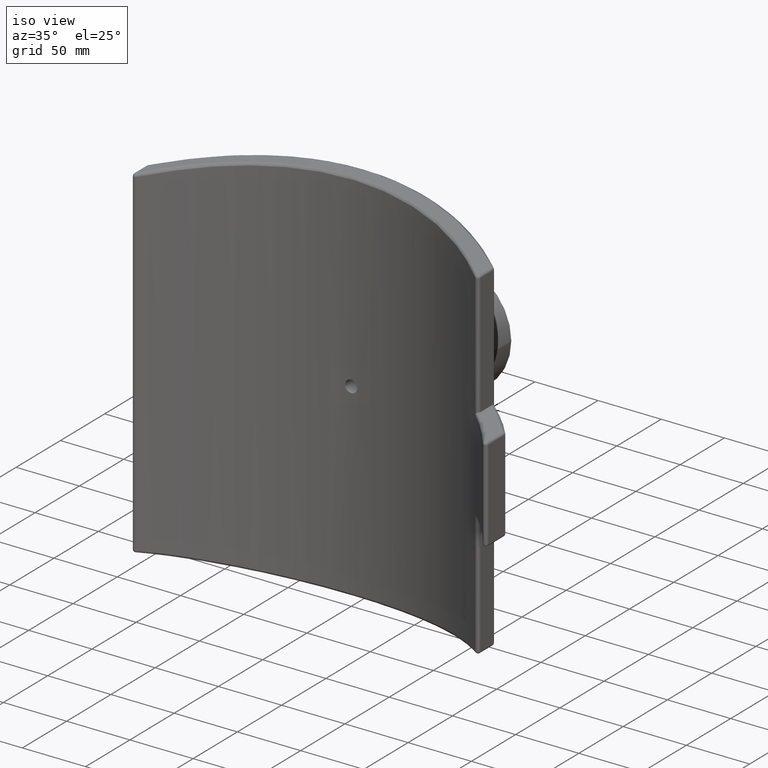
[diagram: clean part render]
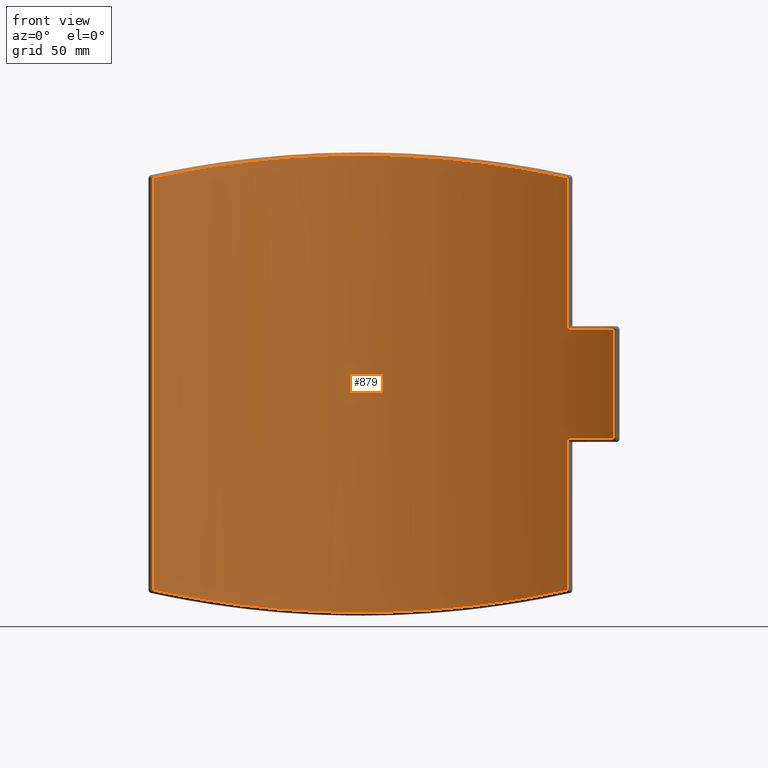
[diagram: tour spotlight — one face highlighted and labeled with its STEP entity id]
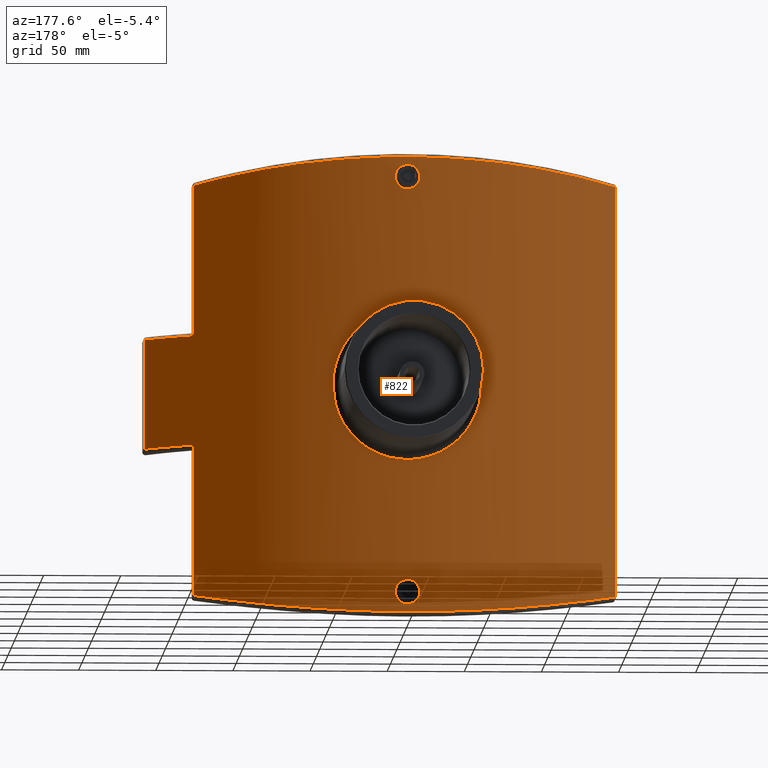
[diagram: tour spotlight — one face highlighted and labeled with its STEP entity id]
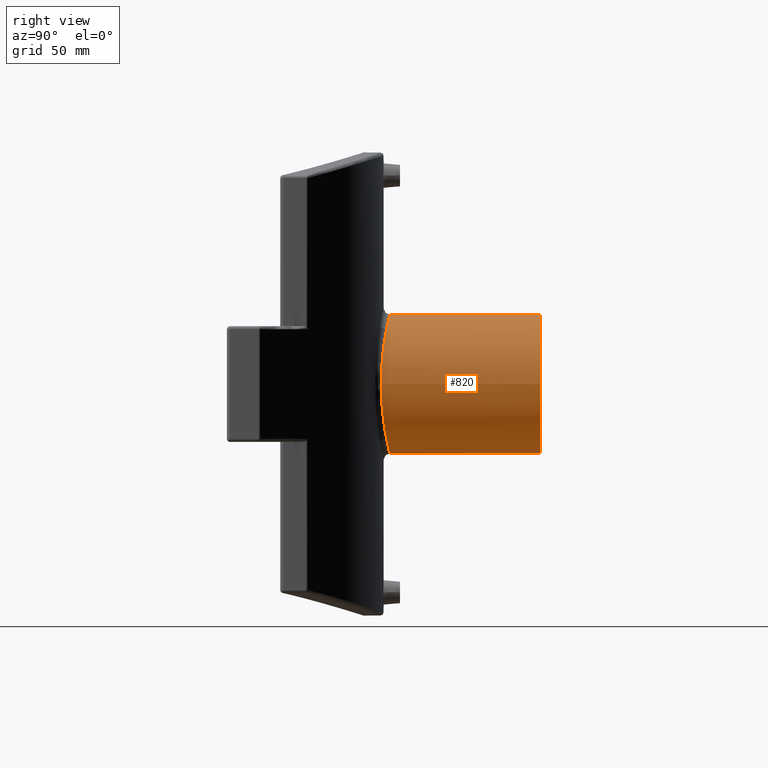
[diagram: tour spotlight — one face highlighted and labeled with its STEP entity id]
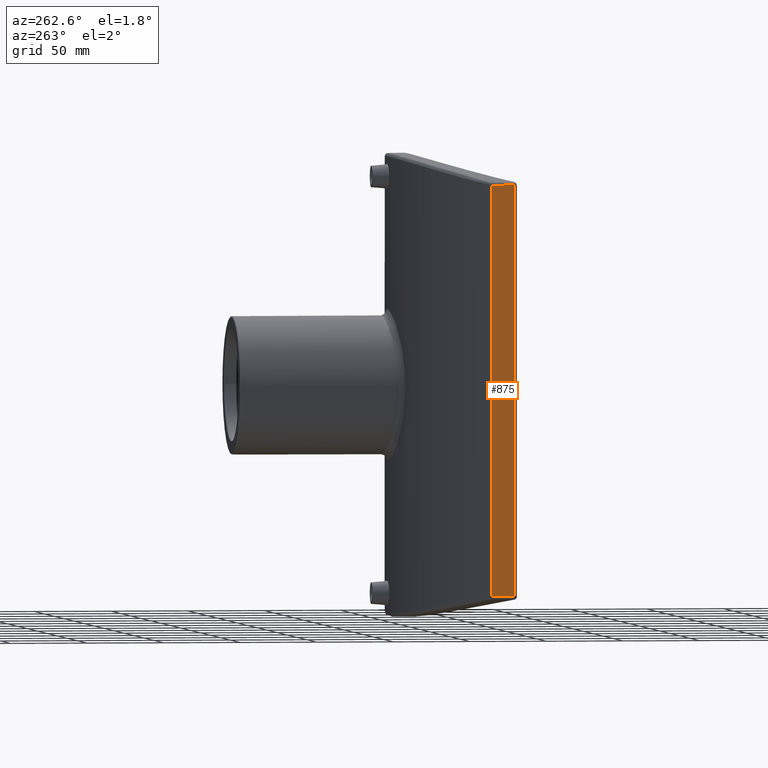
[diagram: tour spotlight — one face highlighted and labeled with its STEP entity id]
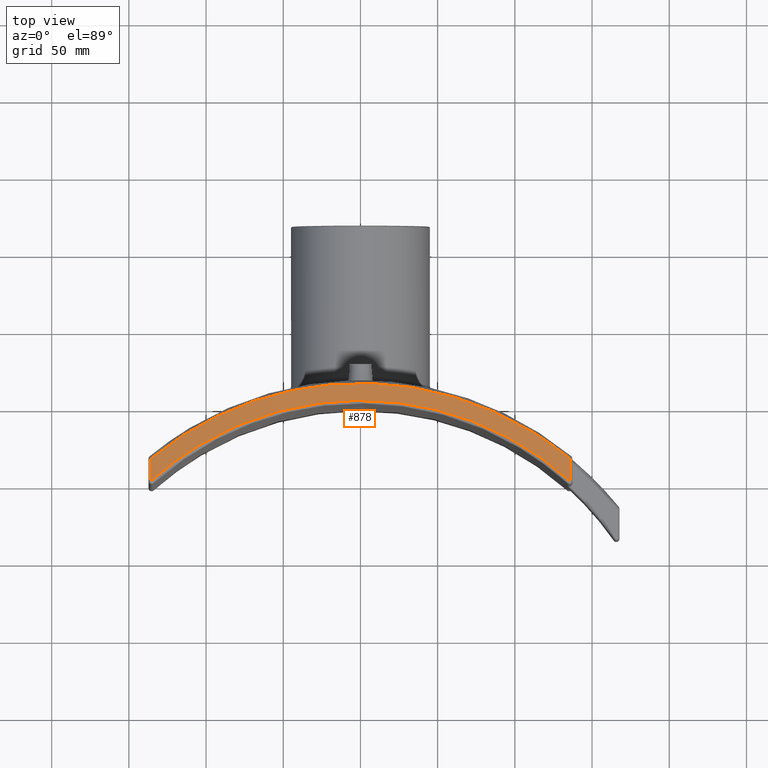
[diagram: tour spotlight — one face highlighted and labeled with its STEP entity id]
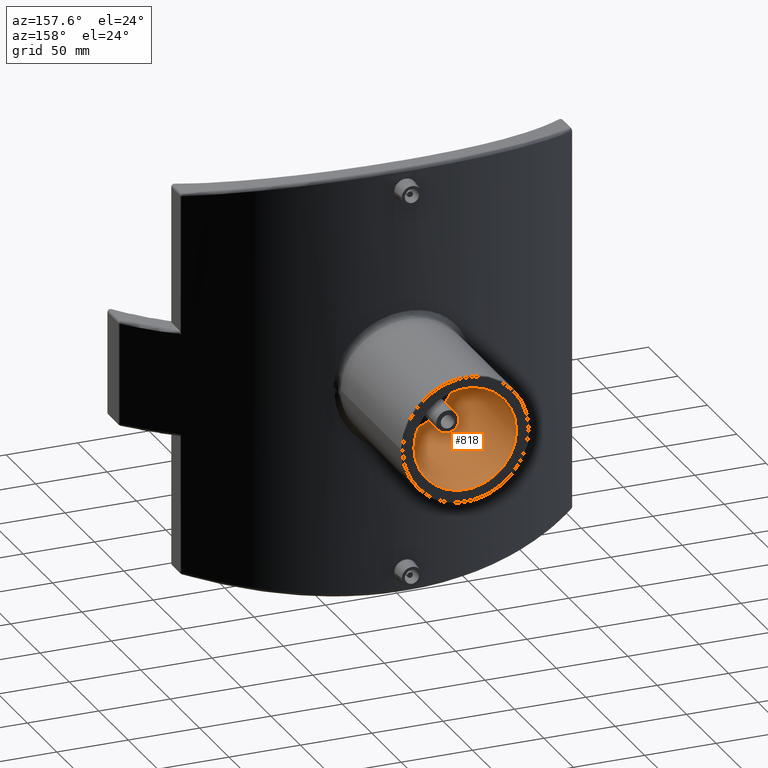
[diagram: tour spotlight — one face highlighted and labeled with its STEP entity id]
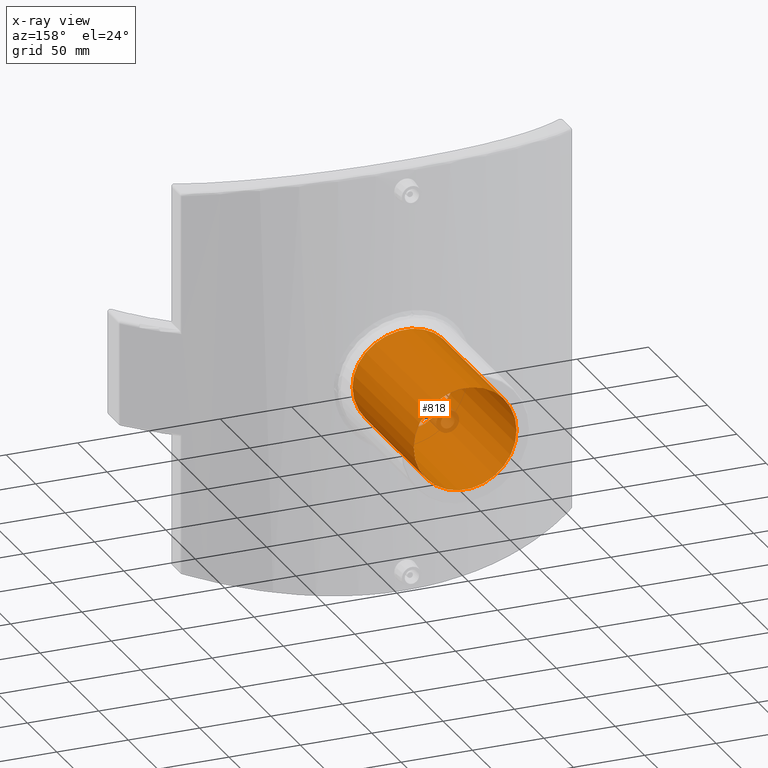
[diagram: x-ray of the same camera — body ghosted, this tour face saturated]
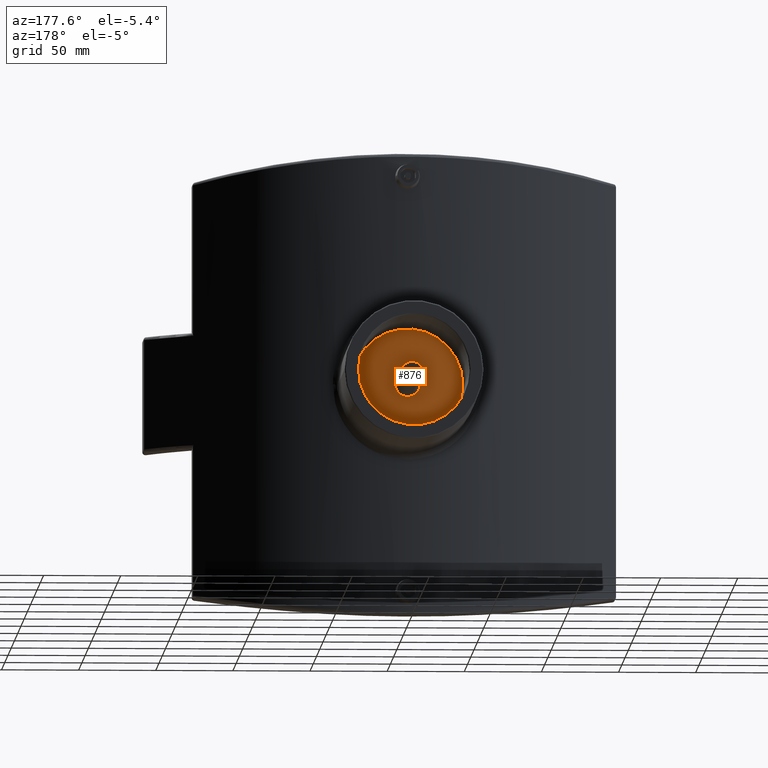
[diagram: tour spotlight — one face highlighted and labeled with its STEP entity id]
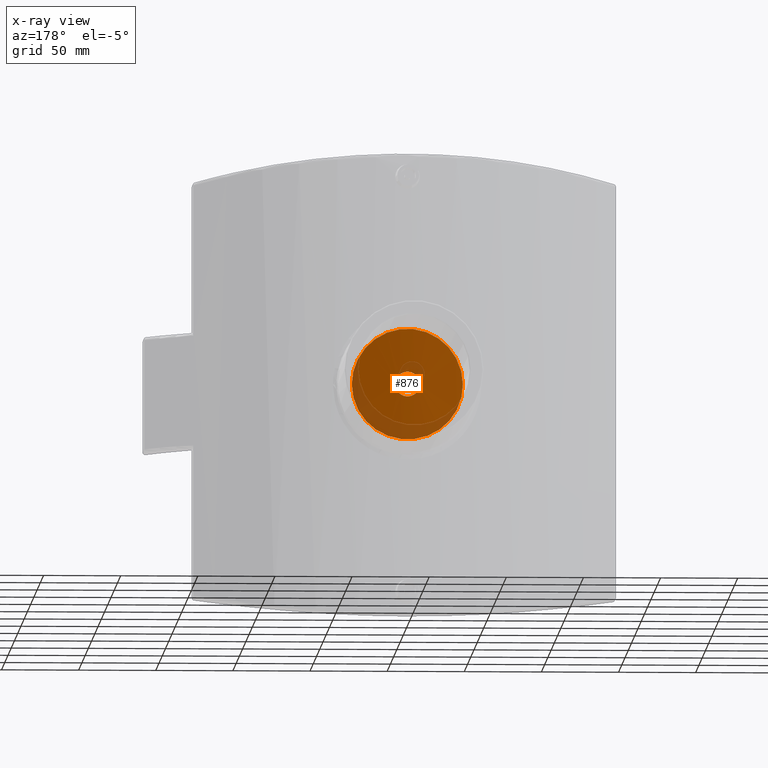
[diagram: x-ray of the same camera — body ghosted, this tour face saturated]
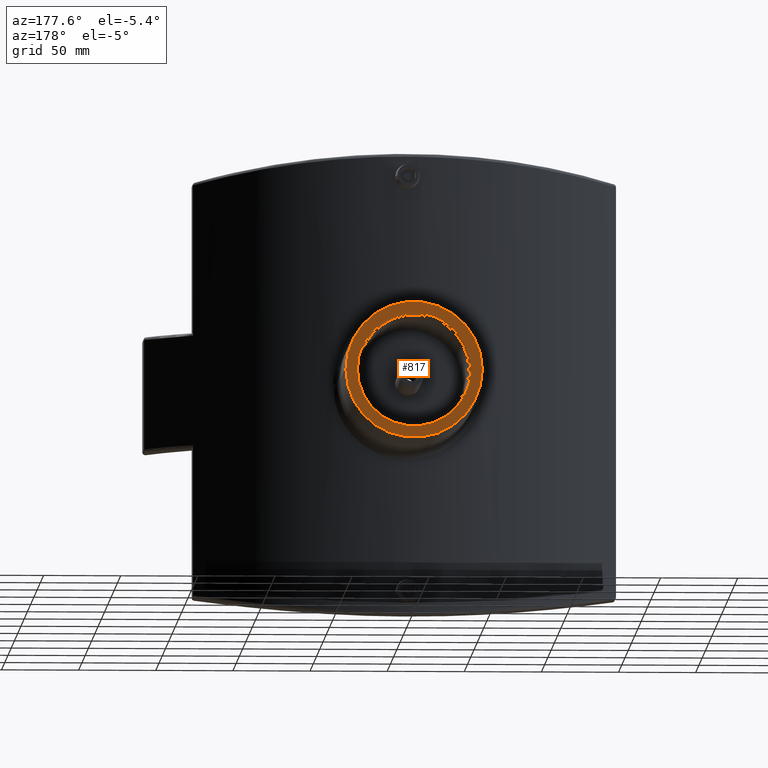
[diagram: tour spotlight — one face highlighted and labeled with its STEP entity id]
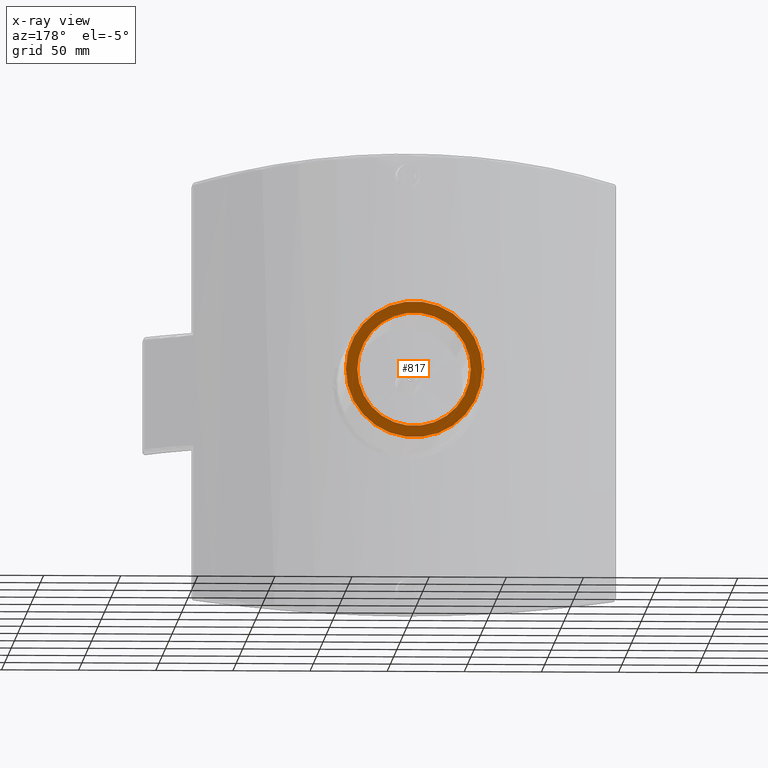
[diagram: x-ray of the same camera — body ghosted, this tour face saturated]
A machine part: a face-by-face anatomy tour. The part has 66 B-rep faces; the first image is the clean iso view, then the 8 largest visible faces are spotlighted one at a time (largest first), each with its STEP entity span.

Face 1 — front view, entity #879. In plain terms, the highlighted cylindrical surface (partial cylindrical patch) has radius 200 mm, axis along (0, 0, 1).
Definition (entity closure, byte-faithful):
#37=LINE('',#1950,#67);
#41=LINE('',#2045,#71);
#48=LINE('',#2082,#78);
#53=LINE('',#2205,#83);
#67=VECTOR('',#1194,71.);
#71=VECTOR('',#1210,97.8920048770969);
#78=VECTOR('',#1233,266.784009754194);
#83=VECTOR('',#1258,97.8920048770969);
#101=B_SPLINE_CURVE_WITH_KNOTS('',3,(#1638,#1639,#1640,#1641,#1642,#1643,
#1644,#1645,#1646,#1647,#1648,#1649,#1650,#1651,#1652,#1653,#1654,#1655,
#1656,#1657,#1658,#1659,#1660,#1661,#1662,#1663,#1664,#1665,#1666,#1667,
#1668,#1669,#1670,#1671),.UNSPECIFIED.,.T.,.F.,(4,2,2,2,2,2,2,2,2,2,2,2,
2,2,2,2,4),(0.,0.180817060233591,0.361634120467183,0.542451178676776,0.723268236886369,
0.904085295095962,1.08490235330556,1.26571941353915,1.44653647377274,1.62735353400633,
1.80817059423992,1.98898765244951,2.16980471065911,2.3506217688687,2.53143882707829,
2.71225588731188,2.89307294754548),.UNSPECIFIED.);
#106=B_SPLINE_CURVE_WITH_KNOTS('',3,(#2021,#2022,#2023,#2024,#2025,#2026,
#2027,#2028,#2029,#2030),.UNSPECIFIED.,.F.,.F.,(4,1,1,1,1,1,1,4),(-35.4445529855151,
-31.1851910725527,-26.9258291595903,-22.6664672466279,-18.4071053336655,
-14.1477434207031,-9.88838150774072,-5.62901959477832),.UNSPECIFIED.);
#112=B_SPLINE_CURVE_WITH_KNOTS('',3,(#2175,#2176,#2177,#2178,#2179,#2180,
#2181,#2182,#2183,#2184),.UNSPECIFIED.,.F.,.F.,(4,1,1,1,1,1,1,4),(-33.5496110408139,
-29.2902491278514,-25.030887214889,-20.7715253019266,-16.5121633889642,
-12.2528014760018,-7.99343956303935,-3.73407765007693),.UNSPECIFIED.);
#141=CYLINDRICAL_SURFACE('',#1005,200.);
#178=FACE_BOUND('',#331,.T.);
#242=FACE_OUTER_BOUND('',#330,.T.);
#330=EDGE_LOOP('',(#791,#792,#793,#794,#795,#796,#797,#798));
#331=EDGE_LOOP('',(#799));
#390=CIRCLE('',#980,200.);
#393=CIRCLE('',#988,200.);
#416=VERTEX_POINT('',#1637);
#433=VERTEX_POINT('',#1763);
#438=VERTEX_POINT('',#1839);
#447=VERTEX_POINT('',#1865);
#448=VERTEX_POINT('',#1869);
#453=VERTEX_POINT('',#1942);
#458=VERTEX_POINT('',#1958);
#460=VERTEX_POINT('',#2044);
#464=VERTEX_POINT('',#2086);
#488=EDGE_CURVE('',#416,#416,#101,.T.);
#540=EDGE_CURVE('',#453,#447,#37,.T.);
#546=EDGE_CURVE('',#448,#458,#106,.T.);
#549=EDGE_CURVE('',#458,#460,#41,.T.);
#552=EDGE_CURVE('',#460,#453,#390,.T.);
#561=EDGE_CURVE('',#438,#448,#48,.T.);
#563=EDGE_CURVE('',#447,#464,#393,.T.);
#571=EDGE_CURVE('',#433,#438,#112,.T.);
#575=EDGE_CURVE('',#464,#433,#53,.T.);
#791=ORIENTED_EDGE('',*,*,#546,.F.);
#792=ORIENTED_EDGE('',*,*,#561,.F.);
#793=ORIENTED_EDGE('',*,*,#571,.F.);
#794=ORIENTED_EDGE('',*,*,#575,.F.);
#795=ORIENTED_EDGE('',*,*,#563,.F.);
#796=ORIENTED_EDGE('',*,*,#540,.F.);
#797=ORIENTED_EDGE('',*,*,#552,.F.);
#798=ORIENTED_EDGE('',*,*,#549,.F.);
#799=ORIENTED_EDGE('',*,*,#488,.T.);
#879=ADVANCED_FACE('',(#242,#178),#141,.F.);
#980=AXIS2_PLACEMENT_3D('',#2061,#1215,#1216);
#988=AXIS2_PLACEMENT_3D('',#2087,#1238,#1239);
#1005=AXIS2_PLACEMENT_3D('',#2221,#1282,#1283);
#1194=DIRECTION('',(0.,0.,-1.));
#1210=DIRECTION('',(0.,0.,-1.));
#1215=DIRECTION('center_axis',(0.,0.,-1.));
#1216=DIRECTION('ref_axis',(0.767961388285212,0.64049614058404,0.));
#1233=DIRECTION('',(0.,0.,1.));
#1238=DIRECTION('center_axis',(0.,0.,1.));
#1239=DIRECTION('ref_axis',(0.767961388285212,0.64049614058404,0.));
#1258=DIRECTION('',(0.,0.,-1.));
#1282=DIRECTION('center_axis',(0.,0.,1.));
#1283=DIRECTION('ref_axis',(-1.,0.,0.));
#1637=CARTESIAN_POINT('',(4.8,199.94239170321,-1.38777878078145E-16));
#1638=CARTESIAN_POINT('Ctrl Pts',(4.8,199.94239170321,-1.38777878078145E-16));
#1639=CARTESIAN_POINT('Ctrl Pts',(4.8,199.94239170321,-0.602723534111971));
#1640=CARTESIAN_POINT('Ctrl Pts',(4.67954083216235,199.945397343844,-1.24560563054448));
#1641=CARTESIAN_POINT('Ctrl Pts',(4.1896760719842,199.956261806887,-2.42821955680468));
#1642=CARTESIAN_POINT('Ctrl Pts',(3.8202717566496,199.963964722883,-2.96795334274125));
#1643=CARTESIAN_POINT('Ctrl Pts',(2.96795334751152,199.978431129239,-3.82027175187934));
#1644=CARTESIAN_POINT('Ctrl Pts',(2.42821955905803,199.986133077268,-4.18967607003134));
#1645=CARTESIAN_POINT('Ctrl Pts',(1.2456056265593,199.996995327551,-4.67954083483257));
#1646=CARTESIAN_POINT('Ctrl Pts',(0.60272352736531,200.,-4.8));
#1647=CARTESIAN_POINT('Ctrl Pts',(-0.602723527365311,200.,-4.8));
#1648=CARTESIAN_POINT('Ctrl Pts',(-1.2456056265593,199.996995327551,-4.67954083483257));
#1649=CARTESIAN_POINT('Ctrl Pts',(-2.42821955905804,199.986133077268,-4.18967607003134));
#1650=CARTESIAN_POINT('Ctrl Pts',(-2.96795334751152,199.978431129239,-3.82027175187934));
#1651=CARTESIAN_POINT('Ctrl Pts',(-3.8202717566496,199.963964722883,-2.96795334274125));
#1652=CARTESIAN_POINT('Ctrl Pts',(-4.1896760719842,199.956261806887,-2.42821955680468));
#1653=CARTESIAN_POINT('Ctrl Pts',(-4.67954083216235,199.945397343844,-1.24560563054448));
#1654=CARTESIAN_POINT('Ctrl Pts',(-4.8,199.94239170321,-0.602723534111971));
#1655=CARTESIAN_POINT('Ctrl Pts',(-4.8,199.94239170321,0.602723534111971));
#1656=CARTESIAN_POINT('Ctrl Pts',(-4.67954083216235,199.945397343844,1.24560563054448));
#1657=CARTESIAN_POINT('Ctrl Pts',(-4.1896760719842,199.956261806887,2.42821955680468));
#1658=CARTESIAN_POINT('Ctrl Pts',(-3.8202717566496,199.963964722883,2.96795334274125));
#1659=CARTESIAN_POINT('Ctrl Pts',(-2.96795334751152,199.978431129239,3.82027175187934));
#1660=CARTESIAN_POINT('Ctrl Pts',(-2.42821955905804,199.986133077268,4.18967607003134));
#1661=CARTESIAN_POINT('Ctrl Pts',(-1.2456056265593,199.996995327551,4.67954083483257));
#1662=CARTESIAN_POINT('Ctrl Pts',(-0.602723527365311,200.,4.8));
#1663=CARTESIAN_POINT('Ctrl Pts',(0.602723527365309,200.,4.8));
#1664=CARTESIAN_POINT('Ctrl Pts',(1.2456056265593,199.996995327551,4.67954083483257));
#1665=CARTESIAN_POINT('Ctrl Pts',(2.42821955905803,199.986133077268,4.18967607003134));
#1666=CARTESIAN_POINT('Ctrl Pts',(2.96795334751152,199.978431129239,3.82027175187934));
#1667=CARTESIAN_POINT('Ctrl Pts',(3.8202717566496,199.963964722883,2.96795334274125));
#1668=CARTESIAN_POINT('Ctrl Pts',(4.1896760719842,199.956261806887,2.42821955680468));
#1669=CARTESIAN_POINT('Ctrl Pts',(4.67954083216235,199.945397343844,1.24560563054448));
#1670=CARTESIAN_POINT('Ctrl Pts',(4.8,199.94239170321,0.602723534111971));
#1671=CARTESIAN_POINT('Ctrl Pts',(4.8,199.94239170321,-2.77555756156289E-16));
#1763=CARTESIAN_POINT('',(133.910891089109,148.552594214039,-133.392004877097));
#1839=CARTESIAN_POINT('',(-133.910891089109,148.552594214039,-133.392004877097));
#1865=CARTESIAN_POINT('',(164.108910891089,114.316513969507,-35.5));
#1869=CARTESIAN_POINT('',(-133.910891089109,148.552594214039,133.392004877097));
#1942=CARTESIAN_POINT('',(164.108910891089,114.316513969507,35.5));
#1950=CARTESIAN_POINT('',(164.108910891089,114.316513969507,0.));
#1958=CARTESIAN_POINT('',(133.910891089109,148.552594214039,133.392004877097));
#2021=CARTESIAN_POINT('Ctrl Pts',(-133.910891089118,148.552594214031,133.392004877095));
#2022=CARTESIAN_POINT('Ctrl Pts',(-123.604752868002,157.842934515249,135.667085320113));
#2023=CARTESIAN_POINT('Ctrl Pts',(-101.036218724514,174.289703117976,140.094344602753));
#2024=CARTESIAN_POINT('Ctrl Pts',(-62.6150184562832,191.499867021492,145.276154651404));
#2025=CARTESIAN_POINT('Ctrl Pts',(-21.2161006319526,200.368188973299,148.117108541962));
#2026=CARTESIAN_POINT('Ctrl Pts',(21.2163930641213,200.369713574989,148.118476920115));
#2027=CARTESIAN_POINT('Ctrl Pts',(62.6146544596855,191.49859090136,145.275028312001));
#2028=CARTESIAN_POINT('Ctrl Pts',(101.035977724692,174.29068165987,140.095074797805));
#2029=CARTESIAN_POINT('Ctrl Pts',(123.604576926162,157.843093115834,135.667124159281));
#2030=CARTESIAN_POINT('Ctrl Pts',(133.910891089109,148.552594214039,133.392004877097));
#2044=CARTESIAN_POINT('',(133.910891089109,148.552594214039,35.5));
#2045=CARTESIAN_POINT('',(133.910891089109,148.552594214039,0.));
#2061=CARTESIAN_POINT('Origin',(0.,0.,35.5));
#2082=CARTESIAN_POINT('',(-133.910891089109,148.552594214039,0.));
#2086=CARTESIAN_POINT('',(133.910891089109,148.552594214039,-35.5));
#2087=CARTESIAN_POINT('Origin',(0.,0.,-35.5));
#2175=CARTESIAN_POINT('Ctrl Pts',(133.910891089119,148.55259421403,-133.392004877095));
#2176=CARTESIAN_POINT('Ctrl Pts',(123.604576926173,157.843093115826,-135.667124159279));
#2177=CARTESIAN_POINT('Ctrl Pts',(101.035539059808,174.290130943579,-140.094467062208));
#2178=CARTESIAN_POINT('Ctrl Pts',(62.6152349368051,191.499645031378,-145.276092033215));
#2179=CARTESIAN_POINT('Ctrl Pts',(21.2159953369663,200.368340063816,-148.117151951753));
#2180=CARTESIAN_POINT('Ctrl Pts',(-21.2164980577146,200.36954271126,-148.118427718073));
#2181=CARTESIAN_POINT('Ctrl Pts',(-62.614475081052,191.498774741084,-145.275080229167));
#2182=CARTESIAN_POINT('Ctrl Pts',(-101.036607213343,174.290267290732,-140.09495688298));
#2183=CARTESIAN_POINT('Ctrl Pts',(-123.604752867993,157.842934515257,-135.667085320115));
#2184=CARTESIAN_POINT('Ctrl Pts',(-133.910891089109,148.552594214039,-133.392004877097));
#2205=CARTESIAN_POINT('',(133.910891089109,148.552594214039,0.));
#2221=CARTESIAN_POINT('Origin',(0.,0.,0.));

Face 2 — auxiliary view, entity #822. In plain terms, the highlighted cylindrical surface (partial cylindrical patch) has radius 215 mm, axis along (0, 0, 1).
Definition (entity closure, byte-faithful):
#29=LINE('',#1529,#59);
#30=LINE('',#1533,#60);
#31=LINE('',#1546,#61);
#32=LINE('',#1559,#62);
#59=VECTOR('',#1032,71.);
#60=VECTOR('',#1035,97.892004877097);
#61=VECTOR('',#1036,266.784009754194);
#62=VECTOR('',#1037,97.892004877097);
#96=B_SPLINE_CURVE_WITH_KNOTS('',3,(#1504,#1505,#1506,#1507,#1508,#1509,
#1510,#1511,#1512,#1513,#1514,#1515,#1516,#1517,#1518,#1519,#1520,#1521,
#1522,#1523,#1524,#1525),.UNSPECIFIED.,.T.,.F.,(4,1,1,1,1,1,1,1,1,1,1,1,
1,1,1,1,1,1,1,4),(-27.208185514338,-25.2647436918853,-23.3213018694325,
-22.0256739877974,-20.7300461061623,-19.4344182245271,-18.138790342892,
-16.8431624612568,-15.5475345796217,-14.2519066979866,-12.9562788163514,
-11.6606509347163,-10.3650230530811,-9.06939517144599,-7.77376728981085,
-6.80204637858449,-5.83032546735814,-3.88688364490542,-1.94344182245271,
0.),.UNSPECIFIED.);
#97=B_SPLINE_CURVE_WITH_KNOTS('',3,(#1535,#1536,#1537,#1538,#1539,#1540,
#1541,#1542,#1543,#1544),.UNSPECIFIED.,.F.,.F.,(4,1,1,1,1,1,1,4),(-34.0611602883262,
-29.8484664557769,-25.6357726232275,-21.4230787906782,-17.2103849581289,
-12.9976911255795,-8.7849972930302,-4.57230346048087),.UNSPECIFIED.);
#98=B_SPLINE_CURVE_WITH_KNOTS('',3,(#1548,#1549,#1550,#1551,#1552,#1553,
#1554,#1555,#1556,#1557),.UNSPECIFIED.,.F.,.F.,(4,1,1,1,1,1,1,4),(-30.7360959862472,
-26.523402153698,-22.3107083211488,-18.0980144885995,-13.8853206560503,
-9.67262682350105,-5.45993299095181,-1.24723915840258),.UNSPECIFIED.);
#99=B_SPLINE_CURVE_WITH_KNOTS('',3,(#1562,#1563,#1564,#1565,#1566,#1567,
#1568,#1569,#1570,#1571,#1572,#1573,#1574,#1575,#1576,#1577,#1578,#1579,
#1580,#1581,#1582,#1583,#1584,#1585,#1586,#1587,#1588,#1589,#1590,#1591,
#1592,#1593,#1594,#1595),.UNSPECIFIED.,.T.,.F.,(4,2,2,2,2,2,2,2,2,2,2,2,
2,2,2,2,4),(0.,0.298939862461717,0.597879724923433,0.896709336524648,1.19553894812586,
1.49436855972708,1.79319817132829,2.09213803379001,2.39107789625172,2.69001775871344,
2.98895762117516,3.28778723277637,3.58661684437759,3.8854464559788,4.18427606758001,
4.48321593004173,4.78215579250345),.UNSPECIFIED.);
#100=B_SPLINE_CURVE_WITH_KNOTS('',3,(#1597,#1598,#1599,#1600,#1601,#1602,
#1603,#1604,#1605,#1606,#1607,#1608,#1609,#1610,#1611,#1612,#1613,#1614,
#1615,#1616,#1617,#1618,#1619,#1620,#1621,#1622,#1623,#1624,#1625,#1626,
#1627,#1628,#1629,#1630),.UNSPECIFIED.,.T.,.F.,(4,2,2,2,2,2,2,2,2,2,2,2,
2,2,2,2,4),(0.,0.298939862461717,0.597879724923433,0.896709336524648,1.19553894812586,
1.49436855972708,1.79319817132829,2.09213803379001,2.39107789625172,2.69001775871344,
2.98895762117516,3.28778723277637,3.58661684437759,3.8854464559788,4.18427606758001,
4.48321593004173,4.78215579250345),.UNSPECIFIED.);
#117=CYLINDRICAL_SURFACE('',#894,215.);
#161=FACE_BOUND('',#257,.T.);
#162=FACE_BOUND('',#258,.T.);
#163=FACE_BOUND('',#259,.T.);
#185=FACE_OUTER_BOUND('',#256,.T.);
#256=EDGE_LOOP('',(#596,#597,#598,#599,#600,#601,#602,#603));
#257=EDGE_LOOP('',(#604));
#258=EDGE_LOOP('',(#605));
#259=EDGE_LOOP('',(#606));
#339=CIRCLE('',#895,215.);
#340=CIRCLE('',#896,215.);
#403=VERTEX_POINT('',#1502);
#404=VERTEX_POINT('',#1527);
#405=VERTEX_POINT('',#1528);
#406=VERTEX_POINT('',#1530);
#407=VERTEX_POINT('',#1532);
#408=VERTEX_POINT('',#1534);
#409=VERTEX_POINT('',#1545);
#410=VERTEX_POINT('',#1547);
#411=VERTEX_POINT('',#1558);
#412=VERTEX_POINT('',#1561);
#413=VERTEX_POINT('',#1596);
#475=EDGE_CURVE('',#403,#403,#96,.T.);
#476=EDGE_CURVE('',#404,#405,#29,.T.);
#477=EDGE_CURVE('',#406,#404,#339,.T.);
#478=EDGE_CURVE('',#407,#406,#30,.T.);
#479=EDGE_CURVE('',#408,#407,#97,.T.);
#480=EDGE_CURVE('',#409,#408,#31,.T.);
#481=EDGE_CURVE('',#410,#409,#98,.T.);
#482=EDGE_CURVE('',#411,#410,#32,.T.);
#483=EDGE_CURVE('',#405,#411,#340,.T.);
#484=EDGE_CURVE('',#412,#412,#99,.T.);
#485=EDGE_CURVE('',#413,#413,#100,.T.);
#596=ORIENTED_EDGE('',*,*,#476,.F.);
#597=ORIENTED_EDGE('',*,*,#477,.F.);
#598=ORIENTED_EDGE('',*,*,#478,.F.);
#599=ORIENTED_EDGE('',*,*,#479,.F.);
#600=ORIENTED_EDGE('',*,*,#480,.F.);
#601=ORIENTED_EDGE('',*,*,#481,.F.);
#602=ORIENTED_EDGE('',*,*,#482,.F.);
#603=ORIENTED_EDGE('',*,*,#483,.F.);
#604=ORIENTED_EDGE('',*,*,#484,.T.);
#605=ORIENTED_EDGE('',*,*,#485,.T.);
#606=ORIENTED_EDGE('',*,*,#475,.F.);
#822=ADVANCED_FACE('',(#185,#161,#162,#163),#117,.T.);
#894=AXIS2_PLACEMENT_3D('',#1526,#1030,#1031);
#895=AXIS2_PLACEMENT_3D('',#1531,#1033,#1034);
#896=AXIS2_PLACEMENT_3D('',#1560,#1038,#1039);
#1030=DIRECTION('center_axis',(0.,0.,1.));
#1031=DIRECTION('ref_axis',(1.,0.,0.));
#1032=DIRECTION('',(0.,0.,1.));
#1033=DIRECTION('center_axis',(0.,0.,-1.));
#1034=DIRECTION('ref_axis',(0.712959302615589,0.701205414136181,0.));
#1035=DIRECTION('',(0.,0.,1.));
#1036=DIRECTION('',(0.,0.,-1.));
#1037=DIRECTION('',(0.,0.,1.));
#1038=DIRECTION('center_axis',(0.,0.,1.));
#1039=DIRECTION('ref_axis',(0.712959302615589,0.701205414136181,0.));
#1502=CARTESIAN_POINT('',(48.1050228310502,209.549294387798,0.));
#1504=CARTESIAN_POINT('Ctrl Pts',(48.1076832206702,209.54700185251,0.000309991298883538));
#1505=CARTESIAN_POINT('Ctrl Pts',(48.1080582916608,209.547305654999,-7.34923003627727));
#1506=CARTESIAN_POINT('Ctrl Pts',(44.7926485308438,210.349459325852,-22.0507998265062));
#1507=CARTESIAN_POINT('Ctrl Pts',(32.5564148958901,212.691810228919,-37.6339744851042));
#1508=CARTESIAN_POINT('Ctrl Pts',(17.8850145549478,214.398630072154,-46.2797103351702));
#1509=CARTESIAN_POINT('Ctrl Pts',(3.66473044400616,215.135698381792,-49.6036465677285));
#1510=CARTESIAN_POINT('Ctrl Pts',(-10.9041843706142,214.881870066844,-48.4846925208418));
#1511=CARTESIAN_POINT('Ctrl Pts',(-24.4508843808625,213.730525600818,-43.0485617677192));
#1512=CARTESIAN_POINT('Ctrl Pts',(-35.7855846513443,212.079165374285,-33.8298603464869));
#1513=CARTESIAN_POINT('Ctrl Pts',(-43.971483539321,210.486339471388,-21.623812473666));
#1514=CARTESIAN_POINT('Ctrl Pts',(-48.2834732400292,209.50968412987,-7.44157921793164));
#1515=CARTESIAN_POINT('Ctrl Pts',(-48.2845303949243,209.508630487899,7.44231091189044));
#1516=CARTESIAN_POINT('Ctrl Pts',(-43.9707475021902,210.487000790694,21.6235833870058));
#1517=CARTESIAN_POINT('Ctrl Pts',(-35.7850878479866,212.078976005448,33.8300756663386));
#1518=CARTESIAN_POINT('Ctrl Pts',(-24.451293968779,213.730586175397,43.0486763387349));
#1519=CARTESIAN_POINT('Ctrl Pts',(-12.0320453808588,214.786389503019,48.0322661543092));
#1520=CARTESIAN_POINT('Ctrl Pts',(-0.00119318052330378,215.090766348137,
49.4136902337802));
#1521=CARTESIAN_POINT('Ctrl Pts',(14.4441062966396,214.728113888428,47.7595167982535));
#1522=CARTESIAN_POINT('Ctrl Pts',(31.0335562466624,212.989695986086,39.5894533759579));
#1523=CARTESIAN_POINT('Ctrl Pts',(44.7903981049006,210.347636510921,22.0464403389507));
#1524=CARTESIAN_POINT('Ctrl Pts',(48.1073081496797,209.546698050022,7.34985001887504));
#1525=CARTESIAN_POINT('Ctrl Pts',(48.1076832206702,209.54700185251,0.000309991298890729));
#1526=CARTESIAN_POINT('Origin',(0.,0.,0.));
#1527=CARTESIAN_POINT('',(167.306338028169,135.031808310502,-35.5));
#1528=CARTESIAN_POINT('',(167.306338028169,135.031808310502,35.5));
#1529=CARTESIAN_POINT('',(167.306338028169,135.031808310502,0.));
#1530=CARTESIAN_POINT('',(136.519953051643,166.094257633361,-35.5));
#1531=CARTESIAN_POINT('Origin',(0.,0.,-35.5));
#1532=CARTESIAN_POINT('',(136.519953051643,166.09425763336,-133.392004877097));
#1533=CARTESIAN_POINT('',(136.519953051643,166.09425763336,0.));
#1534=CARTESIAN_POINT('',(-136.519953051643,166.09425763336,-133.392004877097));
#1535=CARTESIAN_POINT('Ctrl Pts',(-136.519953051643,166.09425763336,-133.392004877097));
#1536=CARTESIAN_POINT('Ctrl Pts',(-125.723502697251,174.968320569116,-135.729773666671));
#1537=CARTESIAN_POINT('Ctrl Pts',(-102.362985684374,190.63350263303,-140.2024056175));
#1538=CARTESIAN_POINT('Ctrl Pts',(-63.2085418360928,206.958738335174,-145.332973837477));
#1539=CARTESIAN_POINT('Ctrl Pts',(-21.3774493653246,215.348534643414,-148.114874392193));
#1540=CARTESIAN_POINT('Ctrl Pts',(21.3779264621199,215.349641375073,-148.115915715155));
#1541=CARTESIAN_POINT('Ctrl Pts',(63.2085369696898,206.957927193873,-145.332261953252));
#1542=CARTESIAN_POINT('Ctrl Pts',(102.36306947524,190.633803253483,-140.202709754539));
#1543=CARTESIAN_POINT('Ctrl Pts',(125.723153322602,174.968607735038,-135.729849317197));
#1544=CARTESIAN_POINT('Ctrl Pts',(136.519953051643,166.09425763336,-133.392004877097));
#1545=CARTESIAN_POINT('',(-136.519953051643,166.094257633361,133.392004877097));
#1546=CARTESIAN_POINT('',(-136.519953051643,166.094257633361,0.));
#1547=CARTESIAN_POINT('',(136.519953051643,166.094257633361,133.392004877097));
#1548=CARTESIAN_POINT('Ctrl Pts',(136.519953051643,166.094257633361,133.392004877097));
#1549=CARTESIAN_POINT('Ctrl Pts',(125.723153322602,174.968607735038,135.729849317197));
#1550=CARTESIAN_POINT('Ctrl Pts',(102.362954510343,190.633498880703,140.202408929763));
#1551=CARTESIAN_POINT('Ctrl Pts',(63.2088293749993,206.958599912462,145.332928480881));
#1552=CARTESIAN_POINT('Ctrl Pts',(21.3776392347904,215.348569376209,148.11488559005));
#1553=CARTESIAN_POINT('Ctrl Pts',(-21.3777395679149,215.349596485162,148.11590116896));
#1554=CARTESIAN_POINT('Ctrl Pts',(-63.2082628580006,206.958055565316,145.332304108498));
#1555=CARTESIAN_POINT('Ctrl Pts',(-102.363094452045,190.63381078274,140.202707645887));
#1556=CARTESIAN_POINT('Ctrl Pts',(-125.723502697253,174.968320569114,135.72977366667));
#1557=CARTESIAN_POINT('Ctrl Pts',(-136.519953051643,166.09425763336,133.392004877097));
#1558=CARTESIAN_POINT('',(136.519953051643,166.09425763336,35.5));
#1559=CARTESIAN_POINT('',(136.519953051643,166.09425763336,0.));
#1560=CARTESIAN_POINT('Origin',(0.,0.,35.5));
#1561=CARTESIAN_POINT('',(7.94021187234381,214.853329123433,-135.));
#1562=CARTESIAN_POINT('Ctrl Pts',(-7.94021187234381,214.853329123433,-135.));
#1563=CARTESIAN_POINT('Ctrl Pts',(-7.94021187234381,214.853329123433,-135.996466208206));
#1564=CARTESIAN_POINT('Ctrl Pts',(-7.74052143677593,214.860999612224,-137.05910120673));
#1565=CARTESIAN_POINT('Ctrl Pts',(-6.92901799045989,214.888700344615,-139.013203535085));
#1566=CARTESIAN_POINT('Ctrl Pts',(-6.31721954357068,214.908330851865,-139.904682559071));
#1567=CARTESIAN_POINT('Ctrl Pts',(-4.90667416952584,214.945160712395,-141.311565725442));
#1568=CARTESIAN_POINT('Ctrl Pts',(-4.01400272521873,214.964750037002,-141.92091035169));
#1569=CARTESIAN_POINT('Ctrl Pts',(-2.05871690764931,214.992366517964,-142.728815334707));
#1570=CARTESIAN_POINT('Ctrl Pts',(-0.996098705337381,215.,-142.927379833375));
#1571=CARTESIAN_POINT('Ctrl Pts',(0.996098705337382,215.,-142.927379833375));
#1572=CARTESIAN_POINT('Ctrl Pts',(2.0587169076493,214.992366517964,-142.728815334707));
#1573=CARTESIAN_POINT('Ctrl Pts',(4.01400272521873,214.964750037002,-141.92091035169));
#1574=CARTESIAN_POINT('Ctrl Pts',(4.90667416952584,214.945160712395,-141.311565725442));
#1575=CARTESIAN_POINT('Ctrl Pts',(6.31721954357068,214.908330851865,-139.904682559071));
#1576=CARTESIAN_POINT('Ctrl Pts',(6.92901799045987,214.888700344615,-139.013203535085));
#1577=CARTESIAN_POINT('Ctrl Pts',(7.74052143677592,214.860999612224,-137.05910120673));
#1578=CARTESIAN_POINT('Ctrl Pts',(7.9402118723438,214.853329123433,-135.996466208206));
#1579=CARTESIAN_POINT('Ctrl Pts',(7.9402118723438,214.853329123433,-134.003533791794));
#1580=CARTESIAN_POINT('Ctrl Pts',(7.74052143677593,214.860999612224,-132.94089879327));
#1581=CARTESIAN_POINT('Ctrl Pts',(6.92901799045991,214.888700344615,-130.986796464915));
#1582=CARTESIAN_POINT('Ctrl Pts',(6.31721954357068,214.908330851865,-130.095317440929));
#1583=CARTESIAN_POINT('Ctrl Pts',(4.90667416952584,214.945160712395,-128.688434274558));
#1584=CARTESIAN_POINT('Ctrl Pts',(4.01400272521873,214.964750037002,-128.07908964831));
#1585=CARTESIAN_POINT('Ctrl Pts',(2.05871690764931,214.992366517964,-127.271184665293));
#1586=CARTESIAN_POINT('Ctrl Pts',(0.996098705337383,215.,-127.072620166625));
#1587=CARTESIAN_POINT('Ctrl Pts',(-0.996098705337382,215.,-127.072620166625));
#1588=CARTESIAN_POINT('Ctrl Pts',(-2.05871690764931,214.992366517964,-127.271184665293));
#1589=CARTESIAN_POINT('Ctrl Pts',(-4.01400272521873,214.964750037002,-128.07908964831));
#1590=CARTESIAN_POINT('Ctrl Pts',(-4.90667416952584,214.945160712395,-128.688434274558));
#1591=CARTESIAN_POINT('Ctrl Pts',(-6.31721954357068,214.908330851865,-130.095317440929));
#1592=CARTESIAN_POINT('Ctrl Pts',(-6.92901799045989,214.888700344615,-130.986796464915));
#1593=CARTESIAN_POINT('Ctrl Pts',(-7.74052143677592,214.860999612224,-132.94089879327));
#1594=CARTESIAN_POINT('Ctrl Pts',(-7.94021187234381,214.853329123433,-134.003533791794));
#1595=CARTESIAN_POINT('Ctrl Pts',(-7.94021187234381,214.853329123433,-135.));
#1596=CARTESIAN_POINT('',(7.94021187234381,214.853329123433,135.));
#1597=CARTESIAN_POINT('Ctrl Pts',(7.94021187234381,214.853329123433,135.));
#1598=CARTESIAN_POINT('Ctrl Pts',(7.94021187234381,214.853329123433,135.996466208206));
#1599=CARTESIAN_POINT('Ctrl Pts',(7.74052143677593,214.860999612224,137.05910120673));
#1600=CARTESIAN_POINT('Ctrl Pts',(6.92901799045989,214.888700344615,139.013203535085));
#1601=CARTESIAN_POINT('Ctrl Pts',(6.31721954357068,214.908330851865,139.904682559071));
#1602=CARTESIAN_POINT('Ctrl Pts',(4.90667416952584,214.945160712395,141.311565725442));
#1603=CARTESIAN_POINT('Ctrl Pts',(4.01400272521873,214.964750037002,141.92091035169));
#1604=CARTESIAN_POINT('Ctrl Pts',(2.05871690764931,214.992366517964,142.728815334707));
#1605=CARTESIAN_POINT('Ctrl Pts',(0.996098705337381,215.,142.927379833375));
#1606=CARTESIAN_POINT('Ctrl Pts',(-0.99609870533738,215.,142.927379833375));
#1607=CARTESIAN_POINT('Ctrl Pts',(-2.05871690764931,214.992366517964,142.728815334707));
#1608=CARTESIAN_POINT('Ctrl Pts',(-4.01400272521873,214.964750037002,141.92091035169));
#1609=CARTESIAN_POINT('Ctrl Pts',(-4.90667416952584,214.945160712395,141.311565725442));
#1610=CARTESIAN_POINT('Ctrl Pts',(-6.31721954357068,214.908330851865,139.904682559071));
#1611=CARTESIAN_POINT('Ctrl Pts',(-6.92901799045987,214.888700344615,139.013203535085));
#1612=CARTESIAN_POINT('Ctrl Pts',(-7.74052143677592,214.860999612224,137.05910120673));
#1613=CARTESIAN_POINT('Ctrl Pts',(-7.9402118723438,214.853329123433,135.996466208206));
#1614=CARTESIAN_POINT('Ctrl Pts',(-7.9402118723438,214.853329123433,134.003533791794));
#1615=CARTESIAN_POINT('Ctrl Pts',(-7.74052143677593,214.860999612224,132.94089879327));
#1616=CARTESIAN_POINT('Ctrl Pts',(-6.92901799045991,214.888700344615,130.986796464915));
#1617=CARTESIAN_POINT('Ctrl Pts',(-6.31721954357068,214.908330851865,130.095317440929));
#1618=CARTESIAN_POINT('Ctrl Pts',(-4.90667416952584,214.945160712395,128.688434274558));
#1619=CARTESIAN_POINT('Ctrl Pts',(-4.01400272521874,214.964750037002,128.07908964831));
#1620=CARTESIAN_POINT('Ctrl Pts',(-2.05871690764931,214.992366517964,127.271184665293));
#1621=CARTESIAN_POINT('Ctrl Pts',(-0.996098705337383,215.,127.072620166625));
#1622=CARTESIAN_POINT('Ctrl Pts',(0.99609870533738,215.,127.072620166625));
#1623=CARTESIAN_POINT('Ctrl Pts',(2.05871690764931,214.992366517964,127.271184665293));
#1624=CARTESIAN_POINT('Ctrl Pts',(4.01400272521873,214.964750037002,128.07908964831));
#1625=CARTESIAN_POINT('Ctrl Pts',(4.90667416952583,214.945160712395,128.688434274558));
#1626=CARTESIAN_POINT('Ctrl Pts',(6.31721954357067,214.908330851865,130.095317440929));
#1627=CARTESIAN_POINT('Ctrl Pts',(6.92901799045989,214.888700344615,130.986796464915));
#1628=CARTESIAN_POINT('Ctrl Pts',(7.74052143677592,214.860999612224,132.94089879327));
#1629=CARTESIAN_POINT('Ctrl Pts',(7.94021187234381,214.853329123433,134.003533791794));
#1630=CARTESIAN_POINT('Ctrl Pts',(7.94021187234381,214.853329123433,135.));

Face 3 — right view, entity #820. In plain terms, the highlighted cylindrical surface (bore or boss wall) has radius 45 mm, axis along (0, -1, 0).
Definition (entity closure, byte-faithful):
#95=B_SPLINE_CURVE_WITH_KNOTS('',3,(#1370,#1371,#1372,#1373,#1374,#1375,
#1376,#1377,#1378,#1379,#1380,#1381,#1382,#1383,#1384,#1385,#1386,#1387,
#1388,#1389,#1390,#1391),.UNSPECIFIED.,.T.,.F.,(4,1,1,1,1,1,1,1,1,1,1,1,
1,1,1,1,1,1,1,4),(0.,1.94344182245271,3.88688364490542,5.83032546735814,
6.80204637858449,7.77376728981085,9.06939517144599,10.3650230530811,11.6606509347163,
12.9562788163514,14.2519066979866,15.5475345796217,16.8431624612568,18.138790342892,
19.4344182245271,20.7300461061623,22.0256739877974,23.3213018694325,25.2647436918853,
27.208185514338),.UNSPECIFIED.);
#116=CYLINDRICAL_SURFACE('',#892,45.);
#160=FACE_BOUND('',#254,.T.);
#183=FACE_OUTER_BOUND('',#253,.T.);
#253=EDGE_LOOP('',(#590));
#254=EDGE_LOOP('',(#591));
#337=CIRCLE('',#891,45.);
#401=VERTEX_POINT('',#1366);
#402=VERTEX_POINT('',#1369);
#472=EDGE_CURVE('',#401,#401,#337,.T.);
#473=EDGE_CURVE('',#402,#402,#95,.T.);
#590=ORIENTED_EDGE('',*,*,#473,.F.);
#591=ORIENTED_EDGE('',*,*,#472,.F.);
#820=ADVANCED_FACE('',(#183,#160),#116,.T.);
#891=AXIS2_PLACEMENT_3D('',#1367,#1024,#1025);
#892=AXIS2_PLACEMENT_3D('',#1368,#1026,#1027);
#1024=DIRECTION('center_axis',(0.,1.,0.));
#1025=DIRECTION('ref_axis',(1.,0.,0.));
#1026=DIRECTION('center_axis',(0.,-1.,0.));
#1027=DIRECTION('ref_axis',(1.,0.,0.));
#1366=CARTESIAN_POINT('',(-45.,316.2,5.51091059616309E-15));
#1367=CARTESIAN_POINT('Origin',(0.,316.2,0.));
#1368=CARTESIAN_POINT('Origin',(0.,317.,0.));
#1369=CARTESIAN_POINT('',(45.,213.447885911292,0.));
#1370=CARTESIAN_POINT('Ctrl Pts',(45.0024886701191,213.445550724185,0.000284685886741112));
#1371=CARTESIAN_POINT('Ctrl Pts',(45.0021378087417,213.445241269557,6.74986226223219));
#1372=CARTESIAN_POINT('Ctrl Pts',(41.8993235238534,214.261080911124,20.2467309235262));
#1373=CARTESIAN_POINT('Ctrl Pts',(29.0304410831379,216.952294981176,36.3576612636348));
#1374=CARTESIAN_POINT('Ctrl Pts',(13.5117861939613,218.723055542166,43.86078073309));
#1375=CARTESIAN_POINT('Ctrl Pts',(-0.00111616459963351,219.092455024382,
45.3799196024512));
#1376=CARTESIAN_POINT('Ctrl Pts',(-11.2554159685205,218.782415354238,44.1112648355901));
#1377=CARTESIAN_POINT('Ctrl Pts',(-22.8730424359105,217.706969174009,39.53449867843));
#1378=CARTESIAN_POINT('Ctrl Pts',(-33.4752767671484,216.024631372991,31.0684368364334));
#1379=CARTESIAN_POINT('Ctrl Pts',(-41.1325787028082,214.403038014707,19.8583929064339));
#1380=CARTESIAN_POINT('Ctrl Pts',(-45.1679209342173,213.40646547372,6.83477532724632));
#1381=CARTESIAN_POINT('Ctrl Pts',(-45.1669320152337,213.407538718333,-6.83410336340664));
#1382=CARTESIAN_POINT('Ctrl Pts',(-41.1332672311351,214.402364391786,-19.8586032921422));
#1383=CARTESIAN_POINT('Ctrl Pts',(-33.4757415034644,216.024824264969,-31.0682390937125));
#1384=CARTESIAN_POINT('Ctrl Pts',(-22.8726592855625,217.706907472461,-39.5343934601502));
#1385=CARTESIAN_POINT('Ctrl Pts',(-10.2003547197345,218.879672300646,-44.5267584375078));
#1386=CARTESIAN_POINT('Ctrl Pts',(3.42818400813295,219.138223002848,-45.5543692968936));
#1387=CARTESIAN_POINT('Ctrl Pts',(16.730595010822,218.387441794427,-42.5017747976053));
#1388=CARTESIAN_POINT('Ctrl Pts',(30.4550041574747,216.64886716341,-34.5618133026467));
#1389=CARTESIAN_POINT('Ctrl Pts',(41.9014286921182,214.262937638891,-20.2507345345465));
#1390=CARTESIAN_POINT('Ctrl Pts',(45.0028395314966,213.445860178813,-6.74929289045871));
#1391=CARTESIAN_POINT('Ctrl Pts',(45.0024886701191,213.445550724185,0.000284685886734345));

Face 4 — auxiliary view, entity #875. In plain terms, the highlighted planar face has unit normal (-1, 0, 0).
Definition (entity closure, byte-faithful):
#34=LINE('',#1852,#64);
#45=LINE('',#2078,#75);
#47=LINE('',#2081,#77);
#51=LINE('',#2113,#81);
#64=VECTOR('',#1147,266.784009754194);
#75=VECTOR('',#1228,14.5110746154758);
#77=VECTOR('',#1232,266.784009754194);
#81=VECTOR('',#1250,14.5110746154758);
#152=PLANE('',#1001);
#238=FACE_OUTER_BOUND('',#325,.T.);
#325=EDGE_LOOP('',(#777,#778,#779,#780));
#434=VERTEX_POINT('',#1767);
#440=VERTEX_POINT('',#1842);
#442=VERTEX_POINT('',#1848);
#449=VERTEX_POINT('',#1870);
#521=EDGE_CURVE('',#434,#442,#34,.T.);
#558=EDGE_CURVE('',#442,#449,#45,.T.);
#560=EDGE_CURVE('',#449,#440,#47,.T.);
#569=EDGE_CURVE('',#440,#434,#51,.T.);
#777=ORIENTED_EDGE('',*,*,#521,.F.);
#778=ORIENTED_EDGE('',*,*,#569,.F.);
#779=ORIENTED_EDGE('',*,*,#560,.F.);
#780=ORIENTED_EDGE('',*,*,#558,.F.);
#875=ADVANCED_FACE('',(#238),#152,.T.);
#1001=AXIS2_PLACEMENT_3D('',#2217,#1274,#1275);
#1147=DIRECTION('',(0.,0.,1.));
#1228=DIRECTION('',(0.,-1.,0.));
#1232=DIRECTION('',(0.,0.,-1.));
#1250=DIRECTION('',(0.,1.,0.));
#1274=DIRECTION('center_axis',(-1.,0.,0.));
#1275=DIRECTION('ref_axis',(0.,-1.,0.));
#1767=CARTESIAN_POINT('',(-137.25,164.549194771655,-133.392004877097));
#1842=CARTESIAN_POINT('',(-137.25,150.038120156179,-133.392004877097));
#1848=CARTESIAN_POINT('',(-137.25,164.549194771655,133.392004877097));
#1852=CARTESIAN_POINT('',(-137.25,164.549194771655,0.));
#1870=CARTESIAN_POINT('',(-137.25,150.038120156179,133.392004877097));
#2078=CARTESIAN_POINT('',(-137.25,0.,133.392004877097));
#2081=CARTESIAN_POINT('',(-137.25,150.038120156179,0.));
#2113=CARTESIAN_POINT('',(-137.25,0.,-133.392004877097));
#2217=CARTESIAN_POINT('Origin',(-137.25,165.491502803014,0.));

Face 5 — top view, entity #878. In plain terms, the highlighted cylindrical surface (partial cylindrical patch) has radius 635.419 mm, axis along (0, -1, 0).
Definition (entity closure, byte-faithful):
#43=LINE('',#2065,#73);
#46=LINE('',#2079,#76);
#73=VECTOR('',#1222,14.5110746156313);
#76=VECTOR('',#1229,14.5110746149249);
#105=B_SPLINE_CURVE_WITH_KNOTS('',3,(#1931,#1932,#1933,#1934,#1935,#1936,
#1937,#1938,#1939,#1940),.UNSPECIFIED.,.F.,.F.,(4,1,1,1,1,1,1,4),(1.24723915840258,
5.45993299094655,9.67262682349052,13.8853206560345,18.0980144885785,22.3107083211224,
26.5234021536664,30.7360959862104),.UNSPECIFIED.);
#107=B_SPLINE_CURVE_WITH_KNOTS('',3,(#2031,#2032,#2033,#2034,#2035,#2036,
#2037,#2038,#2039,#2040),.UNSPECIFIED.,.F.,.F.,(4,1,1,1,1,1,1,4),(5.62901959484431,
9.88838150779185,14.1477434207394,18.4071053336869,22.6664672466345,26.925829159582,
31.1851910725295,35.4445529854771),.UNSPECIFIED.);
#140=CYLINDRICAL_SURFACE('',#1004,635.41875);
#241=FACE_OUTER_BOUND('',#329,.T.);
#329=EDGE_LOOP('',(#787,#788,#789,#790));
#441=VERTEX_POINT('',#1846);
#450=VERTEX_POINT('',#1872);
#452=VERTEX_POINT('',#1878);
#456=VERTEX_POINT('',#1955);
#535=EDGE_CURVE('',#441,#452,#105,.T.);
#547=EDGE_CURVE('',#456,#450,#107,.T.);
#555=EDGE_CURVE('',#452,#456,#43,.T.);
#559=EDGE_CURVE('',#450,#441,#46,.T.);
#787=ORIENTED_EDGE('',*,*,#547,.F.);
#788=ORIENTED_EDGE('',*,*,#555,.F.);
#789=ORIENTED_EDGE('',*,*,#535,.F.);
#790=ORIENTED_EDGE('',*,*,#559,.F.);
#878=ADVANCED_FACE('',(#241),#140,.T.);
#1004=AXIS2_PLACEMENT_3D('',#2220,#1280,#1281);
#1222=DIRECTION('',(0.,-1.,0.));
#1229=DIRECTION('',(0.,1.,0.));
#1280=DIRECTION('center_axis',(0.,-1.,0.));
#1281=DIRECTION('ref_axis',(0.215999291805601,0.,0.976393520021246));
#1846=CARTESIAN_POINT('',(-135.677047667903,164.549194771663,135.345880586895));
#1872=CARTESIAN_POINT('',(-135.677047667913,150.038120156738,135.345880586893));
#1878=CARTESIAN_POINT('',(135.677047667913,164.549194772246,135.345880586893));
#1931=CARTESIAN_POINT('Ctrl Pts',(-135.677047667913,164.549194771655,135.345880586893));
#1932=CARTESIAN_POINT('Ctrl Pts',(-124.947257064903,173.34070828475,137.6910308087));
#1933=CARTESIAN_POINT('Ctrl Pts',(-101.731081317846,188.860473008017,142.178087937822));
#1934=CARTESIAN_POINT('Ctrl Pts',(-62.8180006005922,205.032864350755,147.323880941702));
#1935=CARTESIAN_POINT('Ctrl Pts',(-21.2457485192001,213.346344424834,150.116267123296));
#1936=CARTESIAN_POINT('Ctrl Pts',(21.2456488055552,213.345326870385,150.115248337727));
#1937=CARTESIAN_POINT('Ctrl Pts',(62.8185636197855,205.033403634207,147.324507285521));
#1938=CARTESIAN_POINT('Ctrl Pts',(101.730942240176,188.860164007394,142.17778827851));
#1939=CARTESIAN_POINT('Ctrl Pts',(124.946909847074,173.340992779576,137.691106698151));
#1940=CARTESIAN_POINT('Ctrl Pts',(135.677047667631,164.549194771886,135.345880586954));
#1955=CARTESIAN_POINT('',(135.677047667428,150.038120156615,135.345880586999));
#2031=CARTESIAN_POINT('Ctrl Pts',(135.677047667428,150.038120156615,135.345880586999));
#2032=CARTESIAN_POINT('Ctrl Pts',(125.234803077776,159.421524047396,137.628183487545));
#2033=CARTESIAN_POINT('Ctrl Pts',(102.368545638348,176.033588476469,142.070115242369));
#2034=CARTESIAN_POINT('Ctrl Pts',(63.4404818662849,193.413576810373,147.266424298659));
#2035=CARTESIAN_POINT('Ctrl Pts',(21.4962169969167,202.373410710739,150.118851007305));
#2036=CARTESIAN_POINT('Ctrl Pts',(-21.4959207078474,202.371870863032,150.11747830854));
#2037=CARTESIAN_POINT('Ctrl Pts',(-63.4408506636497,193.414865691707,147.267554194443));
#2038=CARTESIAN_POINT('Ctrl Pts',(-102.368789816726,176.032600149156,142.069382741749));
#2039=CARTESIAN_POINT('Ctrl Pts',(-125.234981340339,159.421363860634,137.628144525699));
#2040=CARTESIAN_POINT('Ctrl Pts',(-135.677047667642,150.038120156422,135.345880586952));
#2065=CARTESIAN_POINT('',(135.677047667913,0.,135.345880586893));
#2079=CARTESIAN_POINT('',(-135.677047667913,0.,135.345880586893));
#2220=CARTESIAN_POINT('Origin',(3.5527136788005E-14,0.,-485.41875));

Face 6 — auxiliary view, entity #818. An x-ray twin of the same camera follows (body ghosted, this face saturated) — the face is partly hidden behind the body. In plain terms, the highlighted cylindrical surface (bore or boss wall) has radius 36 mm, axis along (0, -1, 0).
Definition (entity closure, byte-faithful):
#94=B_SPLINE_CURVE_WITH_KNOTS('',3,(#1299,#1300,#1301,#1302,#1303,#1304,
#1305,#1306,#1307,#1308,#1309,#1310,#1311,#1312,#1313,#1314,#1315,#1316,
#1317,#1318,#1319,#1320,#1321,#1322,#1323,#1324,#1325,#1326,#1327,#1328,
#1329,#1330,#1331,#1332,#1333,#1334,#1335,#1336,#1337,#1338,#1339,#1340,
#1341,#1342,#1343,#1344,#1345,#1346,#1347,#1348,#1349,#1350,#1351,#1352,
#1353,#1354,#1355,#1356,#1357,#1358,#1359,#1360,#1361,#1362,#1363,#1364),
 .UNSPECIFIED.,.T.,.F.,(4,2,2,2,2,2,2,2,2,2,2,2,2,2,2,2,2,2,2,2,2,2,2,2,
2,2,2,2,2,2,2,2,4),(0.,0.679422394275772,1.35884478855154,2.03826718282732,
2.71768957710309,3.39709348022615,4.07649738334922,4.75590128647228,5.43530518959534,
6.1147090927184,6.79411299584147,7.47351689896453,8.15292080208759,8.83234319636336,
9.51176559063914,10.1911879849149,10.8706103791907,11.5500327734665,12.2294551677422,
12.908877562018,13.5882999562938,14.2677038594168,14.9471077625399,15.626511665663,
16.305915568786,16.9853194719091,17.6647233750321,18.3441272781552,19.0235311812783,
19.702953575554,20.3823759698298,21.0617983641056,21.7412207583814),
 .UNSPECIFIED.);
#115=CYLINDRICAL_SURFACE('',#889,36.);
#158=FACE_BOUND('',#250,.T.);
#181=FACE_OUTER_BOUND('',#249,.T.);
#249=EDGE_LOOP('',(#586));
#250=EDGE_LOOP('',(#587));
#334=CIRCLE('',#885,36.);
#397=VERTEX_POINT('',#1290);
#400=VERTEX_POINT('',#1298);
#468=EDGE_CURVE('',#397,#397,#334,.T.);
#471=EDGE_CURVE('',#400,#400,#94,.T.);
#586=ORIENTED_EDGE('',*,*,#471,.F.);
#587=ORIENTED_EDGE('',*,*,#468,.F.);
#818=ADVANCED_FACE('',(#181,#158),#115,.F.);
#885=AXIS2_PLACEMENT_3D('',#1291,#1012,#1013);
#889=AXIS2_PLACEMENT_3D('',#1297,#1020,#1021);
#1012=DIRECTION('center_axis',(0.,-1.,0.));
#1013=DIRECTION('ref_axis',(1.,0.,0.));
#1020=DIRECTION('center_axis',(0.,-1.,0.));
#1021=DIRECTION('ref_axis',(1.,0.,0.));
#1290=CARTESIAN_POINT('',(-36.,316.2,-4.40872847693047E-15));
#1291=CARTESIAN_POINT('Origin',(0.,316.2,0.));
#1297=CARTESIAN_POINT('Origin',(0.,317.,0.));
#1298=CARTESIAN_POINT('',(36.,211.96461968923,-1.11022302462516E-15));
#1299=CARTESIAN_POINT('Ctrl Pts',(36.,211.96461968923,0.));
#1300=CARTESIAN_POINT('Ctrl Pts',(36.,211.96461968923,-2.26474131425258));
#1301=CARTESIAN_POINT('Ctrl Pts',(35.7828450717474,212.001892084614,-4.60544351156644));
#1302=CARTESIAN_POINT('Ctrl Pts',(34.8696863012011,212.153998845353,-9.25889241174886));
#1303=CARTESIAN_POINT('Ctrl Pts',(34.173893134377,212.268722521017,-11.5716840709806));
#1304=CARTESIAN_POINT('Ctrl Pts',(32.3356162266498,212.556518212812,-16.005211413383));
#1305=CARTESIAN_POINT('Ctrl Pts',(31.1916700748939,212.72954425781,-18.1295596711242));
#1306=CARTESIAN_POINT('Ctrl Pts',(28.5497484115215,213.100190398227,-22.0570415440941));
#1307=CARTESIAN_POINT('Ctrl Pts',(27.0515961284626,213.29743030721,-23.8600921169688));
#1308=CARTESIAN_POINT('Ctrl Pts',(23.8601355469385,213.677973642261,-27.0515526984929));
#1309=CARTESIAN_POINT('Ctrl Pts',(22.0571050662554,213.874669839329,-28.5497002325461));
#1310=CARTESIAN_POINT('Ctrl Pts',(18.129610250948,214.243337154086,-31.191641500077));
#1311=CARTESIAN_POINT('Ctrl Pts',(16.0052289649321,214.414941467276,-32.3356098622757));
#1312=CARTESIAN_POINT('Ctrl Pts',(11.5716375689987,214.699864187539,-34.1739115024865));
#1313=CARTESIAN_POINT('Ctrl Pts',(9.25881576032955,214.813159814355,-34.8697068546287));
#1314=CARTESIAN_POINT('Ctrl Pts',(4.60535897862451,214.963275857504,-35.7828561477688));
#1315=CARTESIAN_POINT('Ctrl Pts',(2.26467967707688,215.,-36.));
#1316=CARTESIAN_POINT('Ctrl Pts',(-2.26467967707687,215.,-36.));
#1317=CARTESIAN_POINT('Ctrl Pts',(-4.60535897862451,214.963275857504,-35.7828561477688));
#1318=CARTESIAN_POINT('Ctrl Pts',(-9.25881576032955,214.813159814355,-34.8697068546287));
#1319=CARTESIAN_POINT('Ctrl Pts',(-11.5716375689987,214.699864187539,-34.1739115024865));
#1320=CARTESIAN_POINT('Ctrl Pts',(-16.0052289649321,214.414941467276,-32.3356098622757));
#1321=CARTESIAN_POINT('Ctrl Pts',(-18.129610250948,214.243337154086,-31.191641500077));
#1322=CARTESIAN_POINT('Ctrl Pts',(-22.0571050662554,213.874669839329,-28.5497002325461));
#1323=CARTESIAN_POINT('Ctrl Pts',(-23.8601355469385,213.677973642261,-27.0515526984929));
#1324=CARTESIAN_POINT('Ctrl Pts',(-27.0515961284626,213.29743030721,-23.8600921169688));
#1325=CARTESIAN_POINT('Ctrl Pts',(-28.5497484115215,213.100190398227,-22.0570415440941));
#1326=CARTESIAN_POINT('Ctrl Pts',(-31.1916700748939,212.72954425781,-18.1295596711242));
#1327=CARTESIAN_POINT('Ctrl Pts',(-32.3356162266498,212.556518212812,-16.005211413383));
#1328=CARTESIAN_POINT('Ctrl Pts',(-34.173893134377,212.268722521017,-11.5716840709806));
#1329=CARTESIAN_POINT('Ctrl Pts',(-34.8696863012011,212.153998845353,-9.25889241174886));
#1330=CARTESIAN_POINT('Ctrl Pts',(-35.7828450717474,212.001892084614,-4.60544351156643));
#1331=CARTESIAN_POINT('Ctrl Pts',(-36.,211.96461968923,-2.26474131425257));
#1332=CARTESIAN_POINT('Ctrl Pts',(-36.,211.96461968923,2.26474131425257));
#1333=CARTESIAN_POINT('Ctrl Pts',(-35.7828450717474,212.001892084614,4.60544351156643));
#1334=CARTESIAN_POINT('Ctrl Pts',(-34.8696863012011,212.153998845353,9.25889241174885));
#1335=CARTESIAN_POINT('Ctrl Pts',(-34.173893134377,212.268722521017,11.5716840709806));
#1336=CARTESIAN_POINT('Ctrl Pts',(-32.3356162266498,212.556518212812,16.005211413383));
#1337=CARTESIAN_POINT('Ctrl Pts',(-31.1916700748939,212.72954425781,18.1295596711242));
#1338=CARTESIAN_POINT('Ctrl Pts',(-28.5497484115215,213.100190398227,22.0570415440941));
#1339=CARTESIAN_POINT('Ctrl Pts',(-27.0515961284626,213.29743030721,23.8600921169688));
#1340=CARTESIAN_POINT('Ctrl Pts',(-23.8601355469385,213.677973642261,27.0515526984929));
#1341=CARTESIAN_POINT('Ctrl Pts',(-22.0571050662554,213.874669839329,28.5497002325461));
#1342=CARTESIAN_POINT('Ctrl Pts',(-18.129610250948,214.243337154086,31.191641500077));
#1343=CARTESIAN_POINT('Ctrl Pts',(-16.0052289649321,214.414941467276,32.3356098622757));
#1344=CARTESIAN_POINT('Ctrl Pts',(-11.5716375689987,214.699864187539,34.1739115024865));
#1345=CARTESIAN_POINT('Ctrl Pts',(-9.25881576032956,214.813159814355,34.8697068546287));
#1346=CARTESIAN_POINT('Ctrl Pts',(-4.60535897862452,214.963275857504,35.7828561477688));
#1347=CARTESIAN_POINT('Ctrl Pts',(-2.26467967707689,215.,36.));
#1348=CARTESIAN_POINT('Ctrl Pts',(2.26467967707687,215.,36.));
#1349=CARTESIAN_POINT('Ctrl Pts',(4.60535897862451,214.963275857504,35.7828561477688));
#1350=CARTESIAN_POINT('Ctrl Pts',(9.25881576032956,214.813159814355,34.8697068546287));
#1351=CARTESIAN_POINT('Ctrl Pts',(11.5716375689987,214.699864187539,34.1739115024865));
#1352=CARTESIAN_POINT('Ctrl Pts',(16.0052289649321,214.414941467276,32.3356098622757));
#1353=CARTESIAN_POINT('Ctrl Pts',(18.129610250948,214.243337154086,31.191641500077));
#1354=CARTESIAN_POINT('Ctrl Pts',(22.0571050662554,213.874669839329,28.5497002325461));
#1355=CARTESIAN_POINT('Ctrl Pts',(23.8601355469385,213.677973642261,27.0515526984929));
#1356=CARTESIAN_POINT('Ctrl Pts',(27.0515961284626,213.29743030721,23.8600921169688));
#1357=CARTESIAN_POINT('Ctrl Pts',(28.5497484115215,213.100190398227,22.0570415440941));
#1358=CARTESIAN_POINT('Ctrl Pts',(31.1916700748939,212.72954425781,18.1295596711242));
#1359=CARTESIAN_POINT('Ctrl Pts',(32.3356162266498,212.556518212812,16.005211413383));
#1360=CARTESIAN_POINT('Ctrl Pts',(34.173893134377,212.268722521017,11.5716840709806));
#1361=CARTESIAN_POINT('Ctrl Pts',(34.8696863012011,212.153998845353,9.25889241174885));
#1362=CARTESIAN_POINT('Ctrl Pts',(35.7828450717474,212.001892084614,4.60544351156643));
#1363=CARTESIAN_POINT('Ctrl Pts',(36.,211.96461968923,2.26474131425257));
#1364=CARTESIAN_POINT('Ctrl Pts',(36.,211.96461968923,-1.66533453693773E-15));

Face 7 — auxiliary view, entity #876. An x-ray twin of the same camera follows (body ghosted, this face saturated) — the face is partly hidden behind the body. In plain terms, the highlighted cylindrical surface (partial cylindrical patch) has radius 215 mm, axis along (0, 0, 1).
Definition (entity closure, byte-faithful):
#94=B_SPLINE_CURVE_WITH_KNOTS('',3,(#1299,#1300,#1301,#1302,#1303,#1304,
#1305,#1306,#1307,#1308,#1309,#1310,#1311,#1312,#1313,#1314,#1315,#1316,
#1317,#1318,#1319,#1320,#1321,#1322,#1323,#1324,#1325,#1326,#1327,#1328,
#1329,#1330,#1331,#1332,#1333,#1334,#1335,#1336,#1337,#1338,#1339,#1340,
#1341,#1342,#1343,#1344,#1345,#1346,#1347,#1348,#1349,#1350,#1351,#1352,
#1353,#1354,#1355,#1356,#1357,#1358,#1359,#1360,#1361,#1362,#1363,#1364),
 .UNSPECIFIED.,.T.,.F.,(4,2,2,2,2,2,2,2,2,2,2,2,2,2,2,2,2,2,2,2,2,2,2,2,
2,2,2,2,2,2,2,2,4),(0.,0.679422394275772,1.35884478855154,2.03826718282732,
2.71768957710309,3.39709348022615,4.07649738334922,4.75590128647228,5.43530518959534,
6.1147090927184,6.79411299584147,7.47351689896453,8.15292080208759,8.83234319636336,
9.51176559063914,10.1911879849149,10.8706103791907,11.5500327734665,12.2294551677422,
12.908877562018,13.5882999562938,14.2677038594168,14.9471077625399,15.626511665663,
16.305915568786,16.9853194719091,17.6647233750321,18.3441272781552,19.0235311812783,
19.702953575554,20.3823759698298,21.0617983641056,21.7412207583814),
 .UNSPECIFIED.);
#102=B_SPLINE_CURVE_WITH_KNOTS('',3,(#1674,#1675,#1676,#1677,#1678,#1679,
#1680,#1681,#1682,#1683,#1684,#1685,#1686,#1687,#1688,#1689,#1690,#1691,
#1692,#1693,#1694,#1695,#1696,#1697,#1698,#1699,#1700,#1701,#1702,#1703,
#1704,#1705,#1706,#1707),.UNSPECIFIED.,.T.,.F.,(4,2,2,2,2,2,2,2,2,2,2,2,
2,2,2,2,4),(0.,0.301379202912804,0.602758405825608,0.904137589232201,1.20551677263879,
1.50689595604538,1.80827513945198,2.10965434236478,2.41103354527759,2.71241274819039,
3.01379195110319,3.31517113450979,3.61655031791638,3.91792950132297,4.21930868472956,
4.52068788764237,4.82206709055517),.UNSPECIFIED.);
#139=CYLINDRICAL_SURFACE('',#1002,215.);
#177=FACE_BOUND('',#327,.T.);
#239=FACE_OUTER_BOUND('',#326,.T.);
#326=EDGE_LOOP('',(#781));
#327=EDGE_LOOP('',(#782));
#400=VERTEX_POINT('',#1298);
#417=VERTEX_POINT('',#1673);
#471=EDGE_CURVE('',#400,#400,#94,.T.);
#489=EDGE_CURVE('',#417,#417,#102,.T.);
#781=ORIENTED_EDGE('',*,*,#471,.T.);
#782=ORIENTED_EDGE('',*,*,#489,.T.);
#876=ADVANCED_FACE('',(#239,#177),#139,.T.);
#1002=AXIS2_PLACEMENT_3D('',#2218,#1276,#1277);
#1276=DIRECTION('center_axis',(0.,0.,1.));
#1277=DIRECTION('ref_axis',(1.,0.,0.));
#1298=CARTESIAN_POINT('',(36.,211.96461968923,-1.11022302462516E-15));
#1299=CARTESIAN_POINT('Ctrl Pts',(36.,211.96461968923,0.));
#1300=CARTESIAN_POINT('Ctrl Pts',(36.,211.96461968923,-2.26474131425258));
#1301=CARTESIAN_POINT('Ctrl Pts',(35.7828450717474,212.001892084614,-4.60544351156644));
#1302=CARTESIAN_POINT('Ctrl Pts',(34.8696863012011,212.153998845353,-9.25889241174886));
#1303=CARTESIAN_POINT('Ctrl Pts',(34.173893134377,212.268722521017,-11.5716840709806));
#1304=CARTESIAN_POINT('Ctrl Pts',(32.3356162266498,212.556518212812,-16.005211413383));
#1305=CARTESIAN_POINT('Ctrl Pts',(31.1916700748939,212.72954425781,-18.1295596711242));
#1306=CARTESIAN_POINT('Ctrl Pts',(28.5497484115215,213.100190398227,-22.0570415440941));
#1307=CARTESIAN_POINT('Ctrl Pts',(27.0515961284626,213.29743030721,-23.8600921169688));
#1308=CARTESIAN_POINT('Ctrl Pts',(23.8601355469385,213.677973642261,-27.0515526984929));
#1309=CARTESIAN_POINT('Ctrl Pts',(22.0571050662554,213.874669839329,-28.5497002325461));
#1310=CARTESIAN_POINT('Ctrl Pts',(18.129610250948,214.243337154086,-31.191641500077));
#1311=CARTESIAN_POINT('Ctrl Pts',(16.0052289649321,214.414941467276,-32.3356098622757));
#1312=CARTESIAN_POINT('Ctrl Pts',(11.5716375689987,214.699864187539,-34.1739115024865));
#1313=CARTESIAN_POINT('Ctrl Pts',(9.25881576032955,214.813159814355,-34.8697068546287));
#1314=CARTESIAN_POINT('Ctrl Pts',(4.60535897862451,214.963275857504,-35.7828561477688));
#1315=CARTESIAN_POINT('Ctrl Pts',(2.26467967707688,215.,-36.));
#1316=CARTESIAN_POINT('Ctrl Pts',(-2.26467967707687,215.,-36.));
#1317=CARTESIAN_POINT('Ctrl Pts',(-4.60535897862451,214.963275857504,-35.7828561477688));
#1318=CARTESIAN_POINT('Ctrl Pts',(-9.25881576032955,214.813159814355,-34.8697068546287));
#1319=CARTESIAN_POINT('Ctrl Pts',(-11.5716375689987,214.699864187539,-34.1739115024865));
#1320=CARTESIAN_POINT('Ctrl Pts',(-16.0052289649321,214.414941467276,-32.3356098622757));
#1321=CARTESIAN_POINT('Ctrl Pts',(-18.129610250948,214.243337154086,-31.191641500077));
#1322=CARTESIAN_POINT('Ctrl Pts',(-22.0571050662554,213.874669839329,-28.5497002325461));
#1323=CARTESIAN_POINT('Ctrl Pts',(-23.8601355469385,213.677973642261,-27.0515526984929));
#1324=CARTESIAN_POINT('Ctrl Pts',(-27.0515961284626,213.29743030721,-23.8600921169688));
#1325=CARTESIAN_POINT('Ctrl Pts',(-28.5497484115215,213.100190398227,-22.0570415440941));
#1326=CARTESIAN_POINT('Ctrl Pts',(-31.1916700748939,212.72954425781,-18.1295596711242));
#1327=CARTESIAN_POINT('Ctrl Pts',(-32.3356162266498,212.556518212812,-16.005211413383));
#1328=CARTESIAN_POINT('Ctrl Pts',(-34.173893134377,212.268722521017,-11.5716840709806));
#1329=CARTESIAN_POINT('Ctrl Pts',(-34.8696863012011,212.153998845353,-9.25889241174886));
#1330=CARTESIAN_POINT('Ctrl Pts',(-35.7828450717474,212.001892084614,-4.60544351156643));
#1331=CARTESIAN_POINT('Ctrl Pts',(-36.,211.96461968923,-2.26474131425257));
#1332=CARTESIAN_POINT('Ctrl Pts',(-36.,211.96461968923,2.26474131425257));
#1333=CARTESIAN_POINT('Ctrl Pts',(-35.7828450717474,212.001892084614,4.60544351156643));
#1334=CARTESIAN_POINT('Ctrl Pts',(-34.8696863012011,212.153998845353,9.25889241174885));
#1335=CARTESIAN_POINT('Ctrl Pts',(-34.173893134377,212.268722521017,11.5716840709806));
#1336=CARTESIAN_POINT('Ctrl Pts',(-32.3356162266498,212.556518212812,16.005211413383));
#1337=CARTESIAN_POINT('Ctrl Pts',(-31.1916700748939,212.72954425781,18.1295596711242));
#1338=CARTESIAN_POINT('Ctrl Pts',(-28.5497484115215,213.100190398227,22.0570415440941));
#1339=CARTESIAN_POINT('Ctrl Pts',(-27.0515961284626,213.29743030721,23.8600921169688));
#1340=CARTESIAN_POINT('Ctrl Pts',(-23.8601355469385,213.677973642261,27.0515526984929));
#1341=CARTESIAN_POINT('Ctrl Pts',(-22.0571050662554,213.874669839329,28.5497002325461));
#1342=CARTESIAN_POINT('Ctrl Pts',(-18.129610250948,214.243337154086,31.191641500077));
#1343=CARTESIAN_POINT('Ctrl Pts',(-16.0052289649321,214.414941467276,32.3356098622757));
#1344=CARTESIAN_POINT('Ctrl Pts',(-11.5716375689987,214.699864187539,34.1739115024865));
#1345=CARTESIAN_POINT('Ctrl Pts',(-9.25881576032956,214.813159814355,34.8697068546287));
#1346=CARTESIAN_POINT('Ctrl Pts',(-4.60535897862452,214.963275857504,35.7828561477688));
#1347=CARTESIAN_POINT('Ctrl Pts',(-2.26467967707689,215.,36.));
#1348=CARTESIAN_POINT('Ctrl Pts',(2.26467967707687,215.,36.));
#1349=CARTESIAN_POINT('Ctrl Pts',(4.60535897862451,214.963275857504,35.7828561477688));
#1350=CARTESIAN_POINT('Ctrl Pts',(9.25881576032956,214.813159814355,34.8697068546287));
#1351=CARTESIAN_POINT('Ctrl Pts',(11.5716375689987,214.699864187539,34.1739115024865));
#1352=CARTESIAN_POINT('Ctrl Pts',(16.0052289649321,214.414941467276,32.3356098622757));
#1353=CARTESIAN_POINT('Ctrl Pts',(18.129610250948,214.243337154086,31.191641500077));
#1354=CARTESIAN_POINT('Ctrl Pts',(22.0571050662554,213.874669839329,28.5497002325461));
#1355=CARTESIAN_POINT('Ctrl Pts',(23.8601355469385,213.677973642261,27.0515526984929));
#1356=CARTESIAN_POINT('Ctrl Pts',(27.0515961284626,213.29743030721,23.8600921169688));
#1357=CARTESIAN_POINT('Ctrl Pts',(28.5497484115215,213.100190398227,22.0570415440941));
#1358=CARTESIAN_POINT('Ctrl Pts',(31.1916700748939,212.72954425781,18.1295596711242));
#1359=CARTESIAN_POINT('Ctrl Pts',(32.3356162266498,212.556518212812,16.005211413383));
#1360=CARTESIAN_POINT('Ctrl Pts',(34.173893134377,212.268722521017,11.5716840709806));
#1361=CARTESIAN_POINT('Ctrl Pts',(34.8696863012011,212.153998845353,9.25889241174885));
#1362=CARTESIAN_POINT('Ctrl Pts',(35.7828450717474,212.001892084614,4.60544351156643));
#1363=CARTESIAN_POINT('Ctrl Pts',(36.,211.96461968923,2.26474131425257));
#1364=CARTESIAN_POINT('Ctrl Pts',(36.,211.96461968923,-1.66533453693773E-15));
#1673=CARTESIAN_POINT('',(8.,214.851111237527,-5.55111512312578E-16));
#1674=CARTESIAN_POINT('Ctrl Pts',(8.,214.851111237527,2.77555756156289E-16));
#1675=CARTESIAN_POINT('Ctrl Pts',(8.,214.851111237527,1.00459734304268));
#1676=CARTESIAN_POINT('Ctrl Pts',(7.79921201097805,214.858881920672,2.07609255415567));
#1677=CARTESIAN_POINT('Ctrl Pts',(6.98275387996581,214.886965626921,4.04709978309557));
#1678=CARTESIAN_POINT('Ctrl Pts',(6.36708885078587,214.906875092909,4.94661964819889));
#1679=CARTESIAN_POINT('Ctrl Pts',(4.94661969416752,214.944261928921,6.36708880481724));
#1680=CARTESIAN_POINT('Ctrl Pts',(4.04709980727755,214.964165380116,6.98275386659363));
#1681=CARTESIAN_POINT('Ctrl Pts',(2.07609251364437,214.992235334888,7.79921203111439));
#1682=CARTESIAN_POINT('Ctrl Pts',(1.00459727802197,215.,8.));
#1683=CARTESIAN_POINT('Ctrl Pts',(-1.00459727802197,215.,8.));
#1684=CARTESIAN_POINT('Ctrl Pts',(-2.07609251364437,214.992235334888,7.79921203111439));
#1685=CARTESIAN_POINT('Ctrl Pts',(-4.04709980727754,214.964165380116,6.98275386659363));
#1686=CARTESIAN_POINT('Ctrl Pts',(-4.94661969416752,214.944261928921,6.36708880481725));
#1687=CARTESIAN_POINT('Ctrl Pts',(-6.36708885078587,214.906875092909,4.94661964819889));
#1688=CARTESIAN_POINT('Ctrl Pts',(-6.98275387996581,214.886965626921,4.04709978309557));
#1689=CARTESIAN_POINT('Ctrl Pts',(-7.79921201097805,214.858881920672,2.07609255415567));
#1690=CARTESIAN_POINT('Ctrl Pts',(-8.,214.851111237527,1.00459734304268));
#1691=CARTESIAN_POINT('Ctrl Pts',(-8.,214.851111237527,-1.00459734304268));
#1692=CARTESIAN_POINT('Ctrl Pts',(-7.79921201097805,214.858881920672,-2.07609255415567));
#1693=CARTESIAN_POINT('Ctrl Pts',(-6.98275387996581,214.886965626921,-4.04709978309557));
#1694=CARTESIAN_POINT('Ctrl Pts',(-6.36708885078587,214.906875092909,-4.94661964819889));
#1695=CARTESIAN_POINT('Ctrl Pts',(-4.94661969416752,214.944261928921,-6.36708880481724));
#1696=CARTESIAN_POINT('Ctrl Pts',(-4.04709980727755,214.964165380116,-6.98275386659363));
#1697=CARTESIAN_POINT('Ctrl Pts',(-2.07609251364437,214.992235334888,-7.79921203111439));
#1698=CARTESIAN_POINT('Ctrl Pts',(-1.00459727802198,215.,-8.));
#1699=CARTESIAN_POINT('Ctrl Pts',(1.00459727802197,215.,-8.));
#1700=CARTESIAN_POINT('Ctrl Pts',(2.07609251364437,214.992235334888,-7.79921203111439));
#1701=CARTESIAN_POINT('Ctrl Pts',(4.04709980727755,214.964165380116,-6.98275386659363));
#1702=CARTESIAN_POINT('Ctrl Pts',(4.94661969416752,214.944261928921,-6.36708880481724));
#1703=CARTESIAN_POINT('Ctrl Pts',(6.36708885078587,214.906875092909,-4.94661964819889));
#1704=CARTESIAN_POINT('Ctrl Pts',(6.98275387996581,214.886965626921,-4.04709978309556));
#1705=CARTESIAN_POINT('Ctrl Pts',(7.79921201097805,214.858881920672,-2.07609255415567));
#1706=CARTESIAN_POINT('Ctrl Pts',(8.,214.851111237527,-1.00459734304268));
#1707=CARTESIAN_POINT('Ctrl Pts',(8.,214.851111237527,-5.55111512312578E-16));
#2218=CARTESIAN_POINT('Origin',(0.,0.,0.));

Face 8 — auxiliary view, entity #817. An x-ray twin of the same camera follows (body ghosted, this face saturated) — the face is partly hidden behind the body. In plain terms, the highlighted planar face has unit normal (0, 1, 0).
Definition (entity closure, byte-faithful):
#142=PLANE('',#887);
#157=FACE_BOUND('',#248,.T.);
#180=FACE_OUTER_BOUND('',#247,.T.);
#247=EDGE_LOOP('',(#584));
#248=EDGE_LOOP('',(#585));
#335=CIRCLE('',#886,36.8);
#336=CIRCLE('',#888,44.2);
#398=VERTEX_POINT('',#1292);
#399=VERTEX_POINT('',#1295);
#469=EDGE_CURVE('',#398,#398,#335,.T.);
#470=EDGE_CURVE('',#399,#399,#336,.T.);
#584=ORIENTED_EDGE('',*,*,#470,.F.);
#585=ORIENTED_EDGE('',*,*,#469,.F.);
#817=ADVANCED_FACE('',(#180,#157),#142,.T.);
#886=AXIS2_PLACEMENT_3D('',#1293,#1014,#1015);
#887=AXIS2_PLACEMENT_3D('',#1294,#1016,#1017);
#888=AXIS2_PLACEMENT_3D('',#1296,#1018,#1019);
#1014=DIRECTION('center_axis',(0.,1.,0.));
#1015=DIRECTION('ref_axis',(1.,0.,0.));
#1016=DIRECTION('center_axis',(0.,1.,0.));
#1017=DIRECTION('ref_axis',(0.,0.,1.));
#1018=DIRECTION('center_axis',(0.,-1.,0.));
#1019=DIRECTION('ref_axis',(1.,0.,0.));
#1292=CARTESIAN_POINT('',(-36.8,317.,4.50670022086226E-15));
#1293=CARTESIAN_POINT('Origin',(0.,317.,0.));
#1294=CARTESIAN_POINT('Origin',(1.77506243071748E-15,317.,-6.57909940518611E-16));
#1295=CARTESIAN_POINT('',(-44.2,317.,-5.4129388522313E-15));
#1296=CARTESIAN_POINT('Origin',(0.,317.,0.));